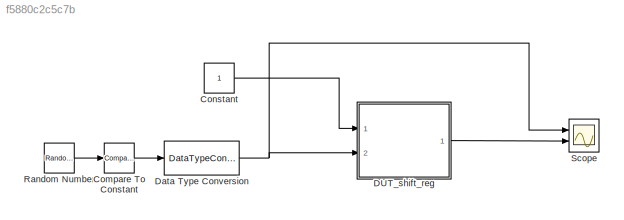
MODEL slx_f5880c2c5c7b
KIND model
CONFIG AbsTol = auto
CONFIG FixedStep = auto
CONFIG MaxStep = auto
CONFIG MinStep = auto
CONFIG RelTol = 1e-3
CONFIG SampleTimeConstraint = Unconstrained
CONFIG Solver = FixedStepDiscrete
CONFIG SolverMode = SingleTasking
CONFIG SolverName = FixedStepDiscrete
CONFIG StartTime = 0.0
CONFIG StopTime = 10
BLOCK [Reference] Compare To Constant  REF=simulink/Logic and Bit
Operations/Compare
To Constant
  Ports = [1, 1]
  SourceBlock = simulink/Logic and Bit\nOperations/Compare\nTo Constant
  SourceType = Compare To Constant
BLOCK [Constant] Constant
  OutDataTypeStr = boolean
  SampleTime = -1
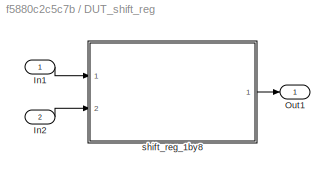
BLOCK [SubSystem] DUT_shift_reg
  Ports = [2, 1]
  RequestExecContextInheritance = off
  Variant = off
BLOCK [Inport] DUT_shift_reg/In1
  IconDisplay = Port number
BLOCK [Inport] DUT_shift_reg/In2
  IconDisplay = Port number
  Port = 2
BLOCK [Outport] DUT_shift_reg/Out1
  IconDisplay = Port number
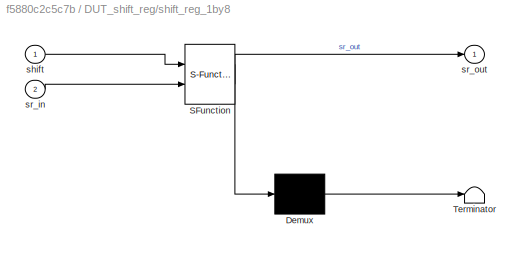
BLOCK [SubSystem] DUT_shift_reg/shift_reg_1by8
  ErrorFcn = Stateflow.Translate.translate
  PermitHierarchicalResolution = ExplicitOnly
  Ports = [2, 1]
  RequestExecContextInheritance = off
  SFBlockType = MATLAB Function
  TreatAsAtomicUnit = on
  Variant = off
BLOCK [Demux] DUT_shift_reg/shift_reg_1by8/ Demux 
  Outputs = 1
  Ports = [1, 1]
BLOCK [S-Function] DUT_shift_reg/shift_reg_1by8/ SFunction 
  EnableBusSupport = on
  FunctionName = sf_sfun
  PortCounts = [2 2]
  Ports = [2, 2]
  SFunctionDeploymentMode = off
  Tag = Stateflow S-Function mlf_shiftreg 20
BLOCK [Terminator] DUT_shift_reg/shift_reg_1by8/ Terminator 
BLOCK [Inport] DUT_shift_reg/shift_reg_1by8/shift
  IconDisplay = Port number
BLOCK [Inport] DUT_shift_reg/shift_reg_1by8/sr_in
  IconDisplay = Port number
  Port = 2
BLOCK [Outport] DUT_shift_reg/shift_reg_1by8/sr_out
  IconDisplay = Port number
BLOCK [DataTypeConversion] Data Type Conversion
  RndMeth = Floor
  SaturateOnIntegerOverflow = off
BLOCK [RandomNumber] Random Number
  SampleTime = 0.1
BLOCK [Scope] Scope
  NumInputPorts = 2
  Ports = [2]
  ScopeSpecificationString = Simulink.scopes.TimeScopeBlockCfg('CurrentConfiguration', extmgr.ConfigurationSet(extmgr.Configuration('Core','General UI',true),extmgr.Configuration('Core','Source UI',true),extmgr.Configuration('Sources','WiredSimulink',true,'DataLoggingSaveFormat','StructureWithTime','DataLoggingLimitDataPoints',true,'DataLoggingDecimation','1','DataLoggingDecimateData',true),extmgr.Configuration('Visuals','Tim...<+2377ch>
LINE Compare To Constant:1 -> Data Type Conversion:1
LINE Constant:1 -> DUT_shift_reg:1
LINE DUT_shift_reg/In1:1 -> DUT_shift_reg/shift_reg_1by8:1
LINE DUT_shift_reg/In2:1 -> DUT_shift_reg/shift_reg_1by8:2
LINE DUT_shift_reg/shift_reg_1by8:1 -> DUT_shift_reg/Out1:1
LINE DUT_shift_reg:1 -> Scope:2
NET Data Type Conversion:1 -> DUT_shift_reg:2, Scope:1
LINE Random Number:1 -> Compare To Constant:1
note: NET lines group one-source signal fan-out (src -> all destinations, sorted); 1:1 wires keep LINE
CHART DUT_shift_reg/shift_reg_1by8 states=1 transitions=1
  STATE_LABEL 'eML_blk_kernel()'
  STATE_LABEL 'SCRIPT:\nfunction sr_out = fcn(shift, sr_in)\n%shift register\n\n% 状態量の定義\npersistent sr;\nif isempty(sr)\n    sr = fi(0, 0, 8, 0);\nend\n\n% MSBを出力\nsr_out = getmsb(sr);\n\n% Dataを遅延\nif (shift)\n    sr = bitconcat(bitsliceget(sr, 7, 1), sr_in);\nend\n\n'
